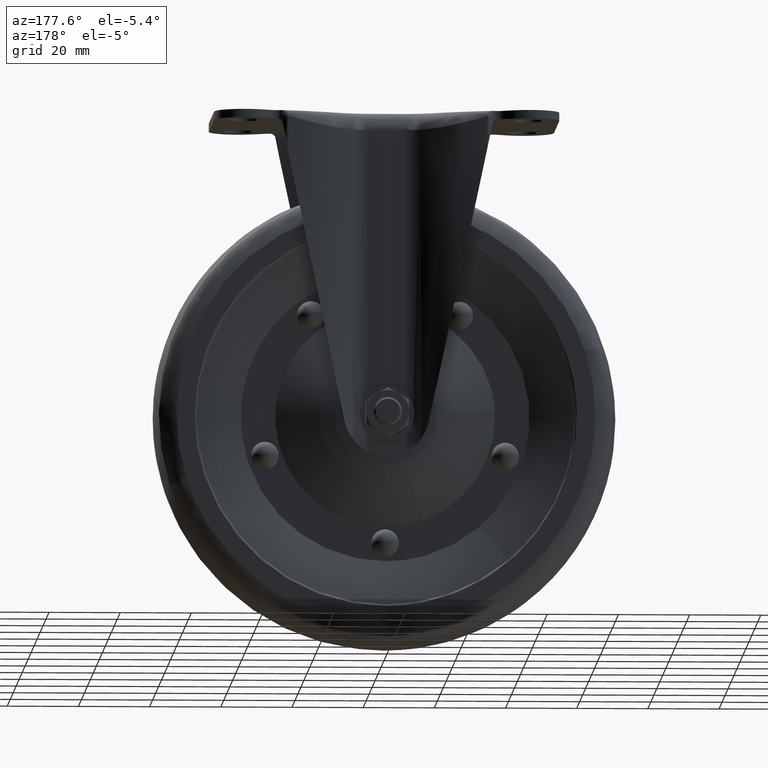
[diagram: clean part render]
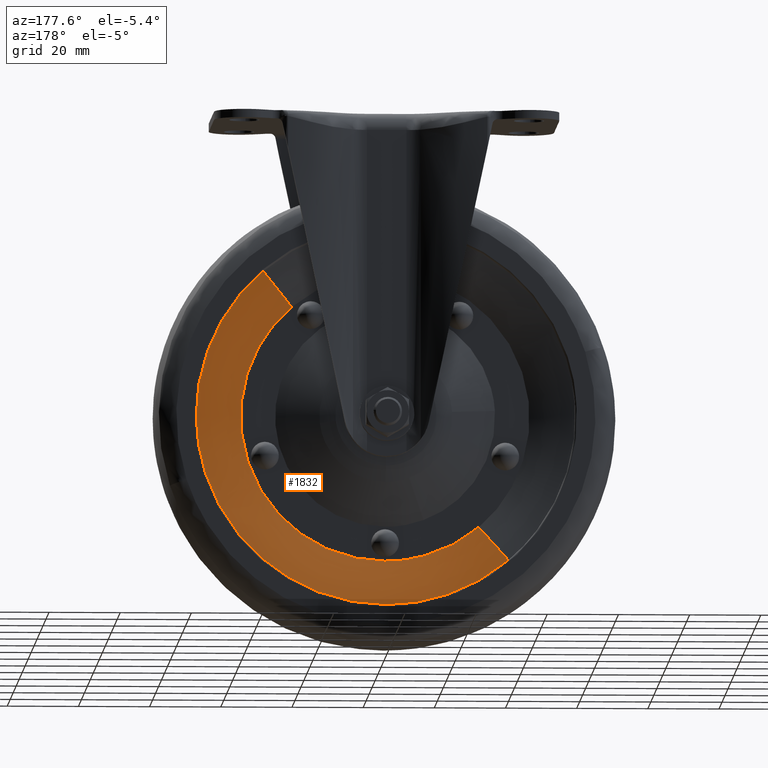
[diagram: same view with one face highlighted and labeled with its STEP entity id]
A machine part, auxiliary view. The second image highlights one B-rep face of the part: STEP entity #1832.
In plain terms, the highlighted face is a freeform B-spline surface patch.
Its self-contained STEP definition (entity closure, byte-faithful):
#1698=CARTESIAN_POINT('',(-25.887145764077115,7.185956787992414,-115.503482838499440));
#1699=CARTESIAN_POINT('',(4.616337074422340,7.185956787992413,-141.390628602576580));
#1700=CARTESIAN_POINT('',(30.503482838499455,7.185956787992414,-110.887145764077160));
#1701=CARTESIAN_POINT('',(56.390628602576570,7.185956787992413,-80.383662925577639));
#1702=CARTESIAN_POINT('',(25.887145764077136,7.185956787992414,-54.496517161500549));
#1703=CARTESIAN_POINT('',(-30.138103997313817,10.726936245283985,-120.512495137362180));
#1704=CARTESIAN_POINT('',(5.374391140048339,10.726936245283978,-150.650599134675990));
#1705=CARTESIAN_POINT('',(35.512495137362137,10.726936245283985,-115.138103997313860));
#1706=CARTESIAN_POINT('',(65.650599134675957,10.726936245283978,-79.625608859951640));
#1707=CARTESIAN_POINT('',(30.138103997313838,10.726936245283985,-49.487504862637856));
#1708=CARTESIAN_POINT('',(-34.881036448489354,12.130577232410939,-126.101213180946520));
#1709=CARTESIAN_POINT('',(6.220176732457121,12.130577232410937,-160.982249629435870));
#1710=CARTESIAN_POINT('',(41.101213180946445,12.130577232410939,-119.881036448489430));
#1711=CARTESIAN_POINT('',(75.982249629435813,12.130577232410937,-78.779823267542852));
#1712=CARTESIAN_POINT('',(34.881036448489375,12.130577232410939,-43.898786819053548));
#1720=(BOUNDED_SURFACE()B_SPLINE_SURFACE(2,2,((#1698,#1703,#1708),(#1699,#1704,#1709),(#1700,#1705,#1710),(#1701,#1706,#1711),(#1702,#1707,#1712)),.UNSPECIFIED.,.F.,.F.,.U.)B_SPLINE_SURFACE_WITH_KNOTS((3,2,3),(3,3),(0.0,89.316530406737670,178.633060813475310),(0.0,14.839199002824429),.UNSPECIFIED.)GEOMETRIC_REPRESENTATION_ITEM()RATIONAL_B_SPLINE_SURFACE(((0.955528067943787,0.944702259817595,0.956083297813117),(0.675660376457132,0.668005374119277,0.676052983262853),(0.955528067943787,0.944702259817595,0.956083297813117),(0.675660376457132,0.668005374119277,0.676052983262853),(0.955528067943787,0.944702259817595,0.956083297813117)))REPRESENTATION_ITEM('')SURFACE());
#1721=CARTESIAN_POINT('',(-34.455729953538651,11.999999999979490,-125.600063711258100));
#1722=VERTEX_POINT('',#1721);
#1723=CARTESIAN_POINT('',(0.0,12.0,-138.250000000000000));
#1724=VERTEX_POINT('',#1723);
#1725=CARTESIAN_POINT('',(-34.455729953538658,11.999999999979490,-125.600063711258130));
#1726=CARTESIAN_POINT('',(-19.549988007199278,11.999999999999996,-138.250000000000030));
#1727=CARTESIAN_POINT('',(0.0,12.0,-138.250000000000000));
#1735=(BOUNDED_CURVE()B_SPLINE_CURVE(2,(#1725,#1726,#1727),.UNSPECIFIED.,.F.,.U.)B_SPLINE_CURVE_WITH_KNOTS((3,3),(0.887331629833572,1.0),.UNSPECIFIED.)CURVE()GEOMETRIC_REPRESENTATION_ITEM()RATIONAL_B_SPLINE_CURVE((0.854978670802134,0.868000793613958,1.0))REPRESENTATION_ITEM(''));
#1736=EDGE_CURVE('',#1722,#1724,#1735,.T.);
#1737=ORIENTED_EDGE('',*,*,#1736,.F.);
#1738=CARTESIAN_POINT('',(-26.270472039869020,7.500000000075627,-115.955165947128190));
#1739=VERTEX_POINT('',#1738);
#1740=CARTESIAN_POINT('',(-26.270472039869020,7.500000000075627,-115.955165947128210));
#1741=CARTESIAN_POINT('',(-30.159773506003535,10.633348894389950,-120.538028871071520));
#1742=CARTESIAN_POINT('',(-34.455729953538651,11.999999999979496,-125.600063711258120));
#1750=(BOUNDED_CURVE()B_SPLINE_CURVE(2,(#1740,#1741,#1742),.UNSPECIFIED.,.F.,.U.)B_SPLINE_CURVE_WITH_KNOTS((3,3),(-1.295362384956242,-0.687933244194225),.UNSPECIFIED.)CURVE()GEOMETRIC_REPRESENTATION_ITEM()RATIONAL_B_SPLINE_CURVE((0.954590594293300,0.945664951086228,0.955095388613076))REPRESENTATION_ITEM(''));
#1751=EDGE_CURVE('',#1739,#1722,#1750,.T.);
#1752=ORIENTED_EDGE('',*,*,#1751,.F.);
#1753=CARTESIAN_POINT('',(0.0,7.500000000000000,-125.599999999999990));
#1754=VERTEX_POINT('',#1753);
#1755=CARTESIAN_POINT('',(-26.270472039869020,7.500000000075627,-115.955165947128190));
#1756=CARTESIAN_POINT('',(-14.905718555772401,7.500000000000001,-125.599999999999920));
#1757=CARTESIAN_POINT('',(0.0,7.500000000000000,-125.599999999999990));
#1765=(BOUNDED_CURVE()B_SPLINE_CURVE(2,(#1755,#1756,#1757),.UNSPECIFIED.,.F.,.U.)B_SPLINE_CURVE_WITH_KNOTS((3,3),(0.887331629833253,1.0),.UNSPECIFIED.)CURVE()GEOMETRIC_REPRESENTATION_ITEM()RATIONAL_B_SPLINE_CURVE((0.854978670802060,0.868000793613584,1.0))REPRESENTATION_ITEM(''));
#1766=EDGE_CURVE('',#1739,#1754,#1765,.T.);
#1767=ORIENTED_EDGE('',*,*,#1766,.T.);
#1768=CARTESIAN_POINT('',(26.270472039869020,7.500000000075630,-54.044834052871792));
#1769=VERTEX_POINT('',#1768);
#1770=CARTESIAN_POINT('',(0.0,7.500000000000000,-125.599999999999990));
#1771=CARTESIAN_POINT('',(40.599999999999994,7.500000000000000,-125.599999999999980));
#1772=CARTESIAN_POINT('',(40.599999999999987,7.500000000000000,-85.0));
#1773=CARTESIAN_POINT('',(40.599999999999994,7.499999999999999,-66.205759446435408));
#1774=CARTESIAN_POINT('',(26.270472039869020,7.500000000075630,-54.044834052871792));
#1782=(BOUNDED_CURVE()B_SPLINE_CURVE(2,(#1770,#1771,#1772,#1773,#1774),.UNSPECIFIED.,.F.,.U.)B_SPLINE_CURVE_WITH_KNOTS((3,2,3),(0.0,0.250000000000000,0.387331629833253),.UNSPECIFIED.)CURVE()GEOMETRIC_REPRESENTATION_ITEM()RATIONAL_B_SPLINE_CURVE((1.0,0.707106781186548,1.0,0.839105987572964,0.854978670802060))REPRESENTATION_ITEM(''));
#1783=EDGE_CURVE('',#1754,#1769,#1782,.T.);
#1784=ORIENTED_EDGE('',*,*,#1783,.T.);
#1785=CARTESIAN_POINT('',(34.455729953538629,11.999999999979490,-44.399936288741891));
#1786=VERTEX_POINT('',#1785);
#1787=CARTESIAN_POINT('',(26.270472039869023,7.500000000075630,-54.044834052871778));
#1788=CARTESIAN_POINT('',(30.159773506003535,10.633348894389950,-49.461971128928468));
#1789=CARTESIAN_POINT('',(34.455729953538629,11.999999999979496,-44.399936288741891));
#1797=(BOUNDED_CURVE()B_SPLINE_CURVE(2,(#1787,#1788,#1789),.UNSPECIFIED.,.F.,.U.)B_SPLINE_CURVE_WITH_KNOTS((3,3),(-1.295362384956242,-0.687933244194226),.UNSPECIFIED.)CURVE()GEOMETRIC_REPRESENTATION_ITEM()RATIONAL_B_SPLINE_CURVE((0.954590594293300,0.945664951086228,0.955095388613076))REPRESENTATION_ITEM(''));
#1798=EDGE_CURVE('',#1769,#1786,#1797,.T.);
#1799=ORIENTED_EDGE('',*,*,#1798,.T.);
#1800=CARTESIAN_POINT('',(53.245795603852962,12.000000003094350,-85.669141623807988));
#1801=VERTEX_POINT('',#1800);
#1802=CARTESIAN_POINT('',(53.245795603852955,12.000000003094353,-85.669141623807988));
#1803=CARTESIAN_POINT('',(53.249999999999993,11.999999999999998,-85.334584020587585));
#1804=CARTESIAN_POINT('',(53.250000000000000,12.0,-85.0));
#1805=CARTESIAN_POINT('',(53.250000000000000,11.999999999999998,-60.349918485712244));
#1806=CARTESIAN_POINT('',(34.455729953538636,11.999999999979490,-44.399936288741891));
#1814=(BOUNDED_CURVE()B_SPLINE_CURVE(2,(#1802,#1803,#1804,#1805,#1806),.UNSPECIFIED.,.F.,.U.)B_SPLINE_CURVE_WITH_KNOTS((3,2,3),(0.247784295921600,0.250000000000000,0.387331629833572),.UNSPECIFIED.)CURVE()GEOMETRIC_REPRESENTATION_ITEM()RATIONAL_B_SPLINE_CURVE((0.994854295643717,0.997404141202157,1.0,0.839105987572590,0.854978670802134))REPRESENTATION_ITEM(''));
#1815=EDGE_CURVE('',#1801,#1786,#1814,.T.);
#1816=ORIENTED_EDGE('',*,*,#1815,.F.);
#1817=CARTESIAN_POINT('',(0.0,12.0,-138.250000000000000));
#1818=CARTESIAN_POINT('',(52.585010267526073,12.0,-138.250000000000000));
#1819=CARTESIAN_POINT('',(53.245795603852955,12.000000003094351,-85.669141623807988));
#1827=(BOUNDED_CURVE()B_SPLINE_CURVE(2,(#1817,#1818,#1819),.UNSPECIFIED.,.F.,.U.)B_SPLINE_CURVE_WITH_KNOTS((3,3),(0.0,0.247784295921600),.UNSPECIFIED.)CURVE()GEOMETRIC_REPRESENTATION_ITEM()RATIONAL_B_SPLINE_CURVE((1.0,0.709702639984391,0.994854295643717))REPRESENTATION_ITEM(''));
#1828=EDGE_CURVE('',#1724,#1801,#1827,.T.);
#1829=ORIENTED_EDGE('',*,*,#1828,.F.);
#1830=EDGE_LOOP('',(#1737,#1752,#1767,#1784,#1799,#1816,#1829));
#1831=FACE_OUTER_BOUND('',#1830,.T.);
#1832=ADVANCED_FACE('',(#1831),#1720,.T.);